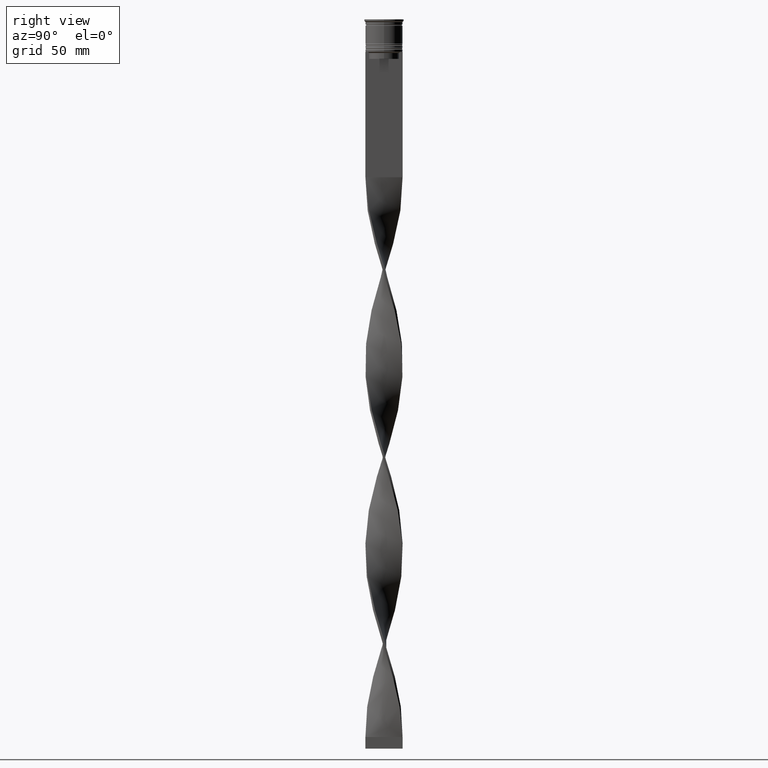
[diagram: clean part render]
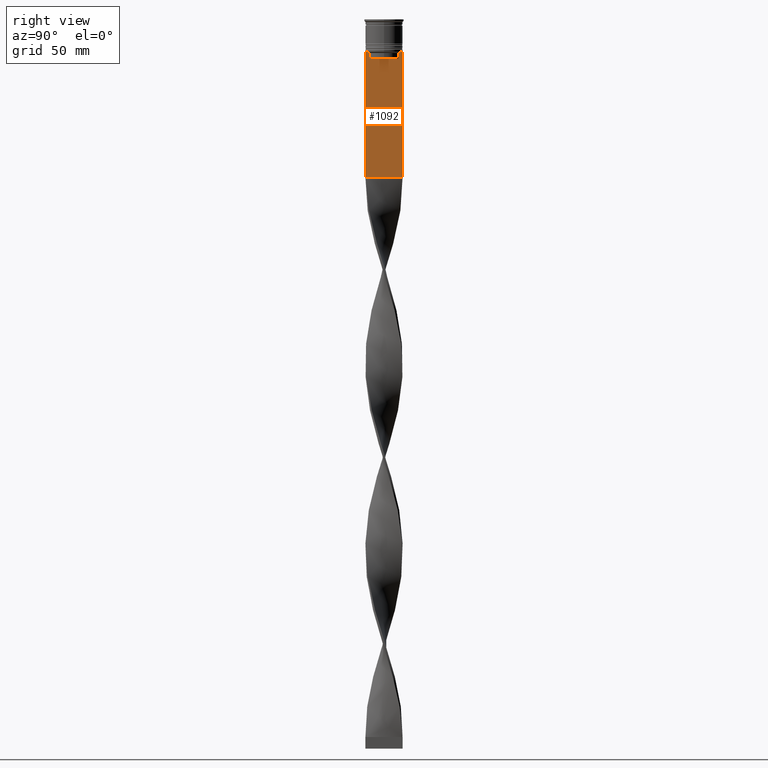
[diagram: same view with one face highlighted and labeled with its STEP entity id]
A machine part, right view. The second image highlights one B-rep face of the part: STEP entity #1092.
In plain terms, the highlighted planar face has unit normal (-1, 0, 0).
Its self-contained STEP definition (entity closure, byte-faithful):
#59 = LINE ( 'NONE', #2305, #2405 ) ;
#151 = CARTESIAN_POINT ( 'NONE',  ( 0.5000000000000001110, -6.714736947305993908, -14.16668390685738821 ) ) ;
#251 = VERTEX_POINT ( 'NONE', #821 ) ;
#266 = CARTESIAN_POINT ( 'NONE',  ( 0.5000000000000001110, 6.881860213634098500, -14.00000000000000178 ) ) ;
#276 = EDGE_CURVE ( 'NONE', #923, #2696, #1209, .T. ) ;
#289 = CARTESIAN_POINT ( 'NONE',  ( 0.5000000000000001110, 6.714736947114692711, -14.16668390704818847 ) ) ;
#290 = CARTESIAN_POINT ( 'NONE',  ( 0.5000000000000001110, -8.000000000000003553, -14.00000000000000178 ) ) ;
#327 = LINE ( 'NONE', #1902, #2540 ) ;
#430 = B_SPLINE_CURVE_WITH_KNOTS ( 'NONE', 3,
 ( #1727, #4016, #151, #3701 ),
 .UNSPECIFIED., .F., .F.,
 ( 4, 4 ),
 ( 0.02996184199614751464, 0.03067452609193705923 ),
 .UNSPECIFIED. ) ;
#465 = LINE ( 'NONE', #3310, #610 ) ;
#610 = VECTOR ( 'NONE', #1670, 1000.000000000000000 ) ;
#773 = EDGE_CURVE ( 'NONE', #3116, #3451, #1564, .T. ) ;
#787 = DIRECTION ( 'NONE',  ( 0.000000000000000000, -1.000000000000000000, 0.000000000000000000 ) ) ;
#797 = VECTOR ( 'NONE', #1585, 1000.000000000000000 ) ;
#821 = CARTESIAN_POINT ( 'NONE',  ( 0.5000000000000001110, -6.380438856379708312, -17.00000000000000000 ) ) ;
#822 = DIRECTION ( 'NONE',  ( -1.000000000000000000, 0.000000000000000000, 0.000000000000000000 ) ) ;
#841 = CARTESIAN_POINT ( 'NONE',  ( 0.5000000000000001110, -7.884161337770806632, -14.00000000000000178 ) ) ;
#844 = ORIENTED_EDGE ( 'NONE', *, *, #1965, .T. ) ;
#882 = ORIENTED_EDGE ( 'NONE', *, *, #773, .F. ) ;
#923 = VERTEX_POINT ( 'NONE', #2742 ) ;
#1084 = CARTESIAN_POINT ( 'NONE',  ( 0.5000000000000001110, 7.999999999999996447, -68.00000000000000000 ) ) ;
#1089 = CARTESIAN_POINT ( 'NONE',  ( 0.5000000000000001110, -8.000000000000003553, 2.031219541881394530 ) ) ;
#1092 = ADVANCED_FACE ( 'NONE', ( #2410 ), #2689, .F. ) ;
#1096 = LINE ( 'NONE', #1409, #2616 ) ;
#1108 = DIRECTION ( 'NONE',  ( 0.000000000000000000, 0.000000000000000000, 1.000000000000000000 ) ) ;
#1176 = DIRECTION ( 'NONE',  ( 0.000000000000000000, -1.000000000000000000, 0.000000000000000000 ) ) ;
#1191 = CARTESIAN_POINT ( 'NONE',  ( 0.5000000000000001110, -8.000000000000003553, -14.00000000000000178 ) ) ;
#1195 = ORIENTED_EDGE ( 'NONE', *, *, #3093, .T. ) ;
#1209 = LINE ( 'NONE', #3756, #3865 ) ;
#1220 = ORIENTED_EDGE ( 'NONE', *, *, #1941, .T. ) ;
#1257 = VERTEX_POINT ( 'NONE', #841 ) ;
#1272 = VECTOR ( 'NONE', #2145, 1000.000000000000000 ) ;
#1296 = CARTESIAN_POINT ( 'NONE',  ( 0.5000000000000001110, 7.999999999999996447, 2.031219541881394530 ) ) ;
#1351 = CARTESIAN_POINT ( 'NONE',  ( 0.5000000000000001110, 6.881860213634098500, -14.00000000000000178 ) ) ;
#1391 = EDGE_CURVE ( 'NONE', #3165, #3408, #59, .T. ) ;
#1409 = CARTESIAN_POINT ( 'NONE',  ( 0.5000000000000001110, -8.000000000000003553, 2.031219541881394530 ) ) ;
#1451 = VERTEX_POINT ( 'NONE', #1795 ) ;
#1507 = EDGE_CURVE ( 'NONE', #3116, #923, #3837, .T. ) ;
#1530 = ORIENTED_EDGE ( 'NONE', *, *, #4043, .T. ) ;
#1548 = CARTESIAN_POINT ( 'NONE',  ( 0.5000000000000001110, 6.547597841304911626, -14.33335192459222718 ) ) ;
#1564 = LINE ( 'NONE', #1296, #797 ) ;
#1572 = CARTESIAN_POINT ( 'NONE',  ( 0.5000000000000001110, 6.380438856379708312, -14.50000000000000000 ) ) ;
#1585 = DIRECTION ( 'NONE',  ( 0.000000000000000000, 0.000000000000000000, -1.000000000000000000 ) ) ;
#1670 = DIRECTION ( 'NONE',  ( -0.000000000000000000, -0.000000000000000000, 1.000000000000000000 ) ) ;
#1727 = CARTESIAN_POINT ( 'NONE',  ( 0.5000000000000001110, -6.380438856379708312, -14.50000000000000000 ) ) ;
#1750 = VECTOR ( 'NONE', #3370, 1000.000000000000000 ) ;
#1752 = CARTESIAN_POINT ( 'NONE',  ( 0.5000000000000001110, -8.000000000000003553, -68.00000000000000000 ) ) ;
#1795 = CARTESIAN_POINT ( 'NONE',  ( 0.5000000000000001110, -6.380438856379708312, -14.50000000000000000 ) ) ;
#1888 = ORIENTED_EDGE ( 'NONE', *, *, #1507, .T. ) ;
#1892 = CARTESIAN_POINT ( 'NONE',  ( 0.5000000000000001110, -8.000000000000003553, -14.00000000000000178 ) ) ;
#1902 = CARTESIAN_POINT ( 'NONE',  ( 0.5000000000000001110, 6.399999999999999467, -17.00000000000000000 ) ) ;
#1941 = EDGE_CURVE ( 'NONE', #3806, #2853, #1096, .T. ) ;
#1965 = EDGE_CURVE ( 'NONE', #1451, #4000, #430, .T. ) ;
#2082 = ORIENTED_EDGE ( 'NONE', *, *, #2151, .T. ) ;
#2115 = DIRECTION ( 'NONE',  ( 0.000000000000000000, -1.000000000000000000, 0.000000000000000000 ) ) ;
#2145 = DIRECTION ( 'NONE',  ( 0.000000000000000000, -1.000000000000000000, 0.000000000000000000 ) ) ;
#2151 = EDGE_CURVE ( 'NONE', #1257, #3806, #2167, .T. ) ;
#2167 = LINE ( 'NONE', #290, #3540 ) ;
#2203 = CARTESIAN_POINT ( 'NONE',  ( 0.5000000000000001110, 7.999999999999996447, -14.00000000000000178 ) ) ;
#2305 = CARTESIAN_POINT ( 'NONE',  ( 0.5000000000000001110, 6.380438856379708312, 0.000000000000000000 ) ) ;
#2400 = AXIS2_PLACEMENT_3D ( 'NONE', #1089, #822, #1108 ) ;
#2402 = CARTESIAN_POINT ( 'NONE',  ( 0.5000000000000001110, -8.000000000000003553, -68.00000000000000000 ) ) ;
#2405 = VECTOR ( 'NONE', #3193, 1000.000000000000000 ) ;
#2410 = FACE_OUTER_BOUND ( 'NONE', #3157, .T. ) ;
#2453 = ORIENTED_EDGE ( 'NONE', *, *, #3459, .T. ) ;
#2538 = VECTOR ( 'NONE', #2115, 1000.000000000000000 ) ;
#2540 = VECTOR ( 'NONE', #3510, 1000.000000000000000 ) ;
#2616 = VECTOR ( 'NONE', #3366, 1000.000000000000000 ) ;
#2689 = PLANE ( 'NONE',  #2400 ) ;
#2696 = VERTEX_POINT ( 'NONE', #1351 ) ;
#2735 = EDGE_CURVE ( 'NONE', #251, #1451, #465, .T. ) ;
#2742 = CARTESIAN_POINT ( 'NONE',  ( 0.5000000000000001110, 7.884161337770806632, -14.00000000000000178 ) ) ;
#2810 = EDGE_CURVE ( 'NONE', #4000, #1257, #3350, .T. ) ;
#2853 = VERTEX_POINT ( 'NONE', #1752 ) ;
#2854 = CARTESIAN_POINT ( 'NONE',  ( 0.5000000000000001110, -8.000000000000003553, -14.00000000000000178 ) ) ;
#2958 = ORIENTED_EDGE ( 'NONE', *, *, #2735, .T. ) ;
#3002 = B_SPLINE_CURVE_WITH_KNOTS ( 'NONE', 3,
 ( #266, #289, #1548, #1572 ),
 .UNSPECIFIED., .F., .F.,
 ( 4, 4 ),
 ( 0.01172465562756038263, 0.01243276816391822651 ),
 .UNSPECIFIED. ) ;
#3093 = EDGE_CURVE ( 'NONE', #2696, #3165, #3002, .T. ) ;
#3116 = VERTEX_POINT ( 'NONE', #2203 ) ;
#3157 = EDGE_LOOP ( 'NONE', ( #4038, #1195, #3871, #1530, #2958, #844, #3795, #2082, #1220, #2453, #882, #1888 ) ) ;
#3165 = VERTEX_POINT ( 'NONE', #3243 ) ;
#3193 = DIRECTION ( 'NONE',  ( 0.000000000000000000, 0.000000000000000000, -1.000000000000000000 ) ) ;
#3243 = CARTESIAN_POINT ( 'NONE',  ( 0.5000000000000001110, 6.380438856379708312, -14.50000000000000000 ) ) ;
#3310 = CARTESIAN_POINT ( 'NONE',  ( 0.5000000000000001110, -6.380438856379708312, 0.000000000000000000 ) ) ;
#3350 = LINE ( 'NONE', #1191, #1272 ) ;
#3366 = DIRECTION ( 'NONE',  ( 0.000000000000000000, 0.000000000000000000, -1.000000000000000000 ) ) ;
#3370 = DIRECTION ( 'NONE',  ( 0.000000000000000000, 1.000000000000000000, 0.000000000000000000 ) ) ;
#3408 = VERTEX_POINT ( 'NONE', #3435 ) ;
#3435 = CARTESIAN_POINT ( 'NONE',  ( 0.5000000000000001110, 6.380438856379708312, -17.00000000000000000 ) ) ;
#3451 = VERTEX_POINT ( 'NONE', #1084 ) ;
#3459 = EDGE_CURVE ( 'NONE', #2853, #3451, #3689, .T. ) ;
#3510 = DIRECTION ( 'NONE',  ( 0.000000000000000000, -1.000000000000000000, 0.000000000000000000 ) ) ;
#3540 = VECTOR ( 'NONE', #1176, 1000.000000000000000 ) ;
#3689 = LINE ( 'NONE', #2402, #1750 ) ;
#3701 = CARTESIAN_POINT ( 'NONE',  ( 0.5000000000000001110, -6.881860213634098500, -14.00000000000000178 ) ) ;
#3756 = CARTESIAN_POINT ( 'NONE',  ( 0.5000000000000001110, -8.000000000000003553, -14.00000000000000178 ) ) ;
#3795 = ORIENTED_EDGE ( 'NONE', *, *, #2810, .T. ) ;
#3806 = VERTEX_POINT ( 'NONE', #2854 ) ;
#3827 = CARTESIAN_POINT ( 'NONE',  ( 0.5000000000000001110, -6.881860213634098500, -14.00000000000000178 ) ) ;
#3837 = LINE ( 'NONE', #1892, #2538 ) ;
#3865 = VECTOR ( 'NONE', #787, 1000.000000000000000 ) ;
#3871 = ORIENTED_EDGE ( 'NONE', *, *, #1391, .T. ) ;
#4000 = VERTEX_POINT ( 'NONE', #3827 ) ;
#4016 = CARTESIAN_POINT ( 'NONE',  ( 0.5000000000000001110, -6.547597841511247019, -14.33335192438652150 ) ) ;
#4038 = ORIENTED_EDGE ( 'NONE', *, *, #276, .T. ) ;
#4043 = EDGE_CURVE ( 'NONE', #3408, #251, #327, .T. ) ;